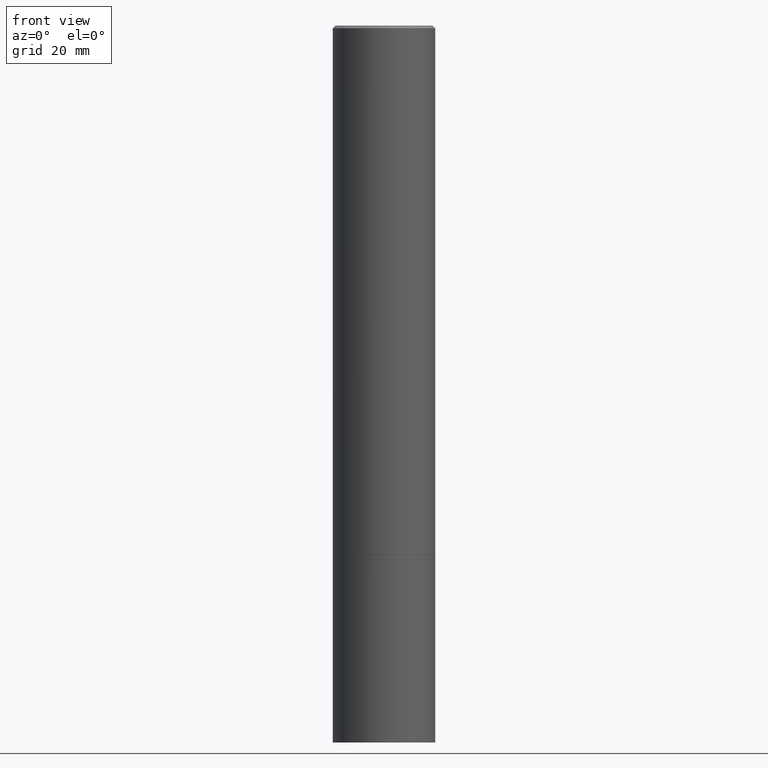
[diagram: clean part render]
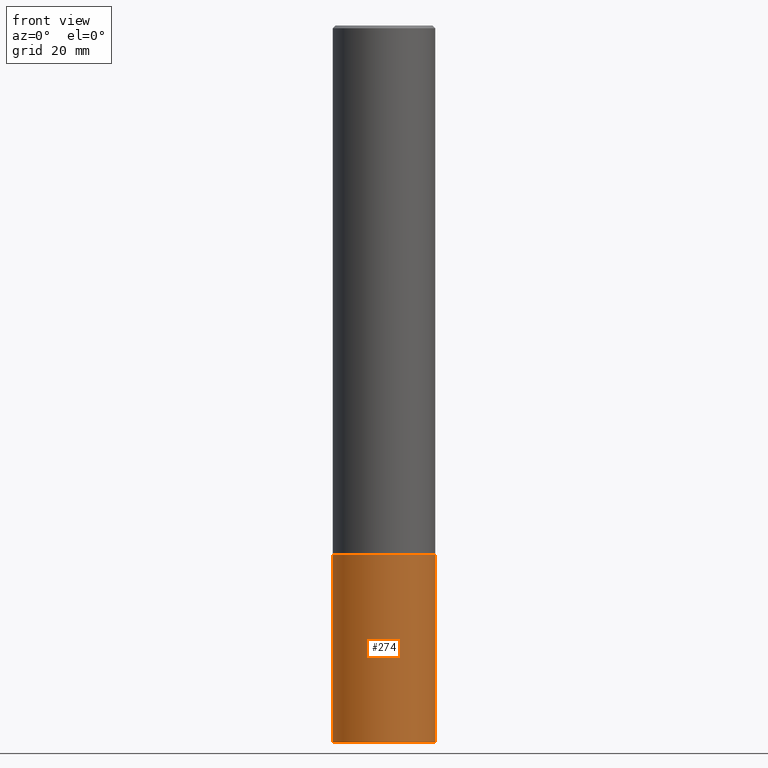
[diagram: same view with one face highlighted and labeled with its STEP entity id]
A machine part, front view. The second image highlights one B-rep face of the part: STEP entity #274.
In plain terms, the highlighted cylindrical surface (partial cylindrical patch) has radius 9.525 mm, axis along (-0, 0, 1).
Its self-contained STEP definition (entity closure, byte-faithful):
#6 = CARTESIAN_POINT ( 'NONE',  ( 1.283871123247196713E-28, -1.833027702892651322E-14, -5.250000000000000000 ) ) ;
#31 = VECTOR ( 'NONE', #267, 39.37007874015748143 ) ;
#39 = AXIS2_PLACEMENT_3D ( 'NONE', #6, #112, #301 ) ;
#60 = DIRECTION ( 'NONE',  ( 1.000000000000000000, -6.982962677686265922E-15, 4.876176775795935793E-29 ) ) ;
#61 = FACE_OUTER_BOUND ( 'NONE', #255, .T. ) ;
#78 = DIRECTION ( 'NONE',  ( -2.445468806185136597E-29, 3.491481338843145583E-15, 1.000000000000000000 ) ) ;
#84 = CARTESIAN_POINT ( 'NONE',  ( 0.000000000000000000, 0.000000000000000000, 0.000000000000000000 ) ) ;
#97 = ORIENTED_EDGE ( 'NONE', *, *, #186, .T. ) ;
#109 = CARTESIAN_POINT ( 'NONE',  ( -0.3750000000000000555, -1.326534834937147625E-14, -3.875000000000000000 ) ) ;
#112 = DIRECTION ( 'NONE',  ( -2.445468806185136597E-29, 3.491481338843145583E-15, 1.000000000000000000 ) ) ;
#126 = ORIENTED_EDGE ( 'NONE', *, *, #344, .F. ) ;
#129 = AXIS2_PLACEMENT_3D ( 'NONE', #84, #307, #60 ) ;
#130 = AXIS2_PLACEMENT_3D ( 'NONE', #206, #78, #319 ) ;
#134 = DIRECTION ( 'NONE',  ( -2.445468806185136877E-29, 3.491481338843145188E-15, 1.000000000000000000 ) ) ;
#180 = EDGE_CURVE ( 'NONE', #312, #299, #184, .T. ) ;
#182 = VECTOR ( 'NONE', #134, 39.37007874015748143 ) ;
#184 = LINE ( 'NONE', #305, #31 ) ;
#186 = EDGE_CURVE ( 'NONE', #364, #190, #265, .T. ) ;
#187 = CIRCLE ( 'NONE', #39, 0.3750000000000000555 ) ;
#190 = VERTEX_POINT ( 'NONE', #361 ) ;
#206 = CARTESIAN_POINT ( 'NONE',  ( 9.476191623967404313E-29, -1.352949018801718908E-14, -3.875000000000000000 ) ) ;
#217 = CIRCLE ( 'NONE', #130, 0.3750000000000000555 ) ;
#245 = CYLINDRICAL_SURFACE ( 'NONE', #129, 0.3750000000000000555 ) ;
#255 = EDGE_LOOP ( 'NONE', ( #345, #290, #97, #126 ) ) ;
#265 = LINE ( 'NONE', #330, #182 ) ;
#267 = DIRECTION ( 'NONE',  ( -2.445468806185136877E-29, 3.491481338843145188E-15, 1.000000000000000000 ) ) ;
#274 = ADVANCED_FACE ( 'NONE', ( #61 ), #245, .T. ) ;
#282 = CARTESIAN_POINT ( 'NONE',  ( 0.3750000000000000555, -2.094888803305886324E-14, -5.250000000000000000 ) ) ;
#290 = ORIENTED_EDGE ( 'NONE', *, *, #318, .T. ) ;
#299 = VERTEX_POINT ( 'NONE', #109 ) ;
#301 = DIRECTION ( 'NONE',  ( 1.000000000000000000, -6.982962677686261189E-15, 0.000000000000000000 ) ) ;
#305 = CARTESIAN_POINT ( 'NONE',  ( -0.3750000000000000555, 2.664535259100376091E-15, -1.844600658845589598E-29 ) ) ;
#306 = CARTESIAN_POINT ( 'NONE',  ( -0.3750000000000000555, -1.326534834937147625E-14, -5.250000000000000000 ) ) ;
#307 = DIRECTION ( 'NONE',  ( -2.445468806185136597E-29, 3.491481338843145583E-15, 1.000000000000000000 ) ) ;
#312 = VERTEX_POINT ( 'NONE', #306 ) ;
#318 = EDGE_CURVE ( 'NONE', #312, #364, #187, .T. ) ;
#319 = DIRECTION ( 'NONE',  ( 1.000000000000000000, -6.982962677686266711E-15, 0.000000000000000000 ) ) ;
#330 = CARTESIAN_POINT ( 'NONE',  ( 0.3750000000000000555, -2.618611004132350016E-15, 1.828566290923476203E-29 ) ) ;
#344 = EDGE_CURVE ( 'NONE', #299, #190, #217, .T. ) ;
#345 = ORIENTED_EDGE ( 'NONE', *, *, #180, .F. ) ;
#361 = CARTESIAN_POINT ( 'NONE',  ( 0.3750000000000000555, -1.614810119214954068E-14, -3.875000000000000000 ) ) ;
#364 = VERTEX_POINT ( 'NONE', #282 ) ;